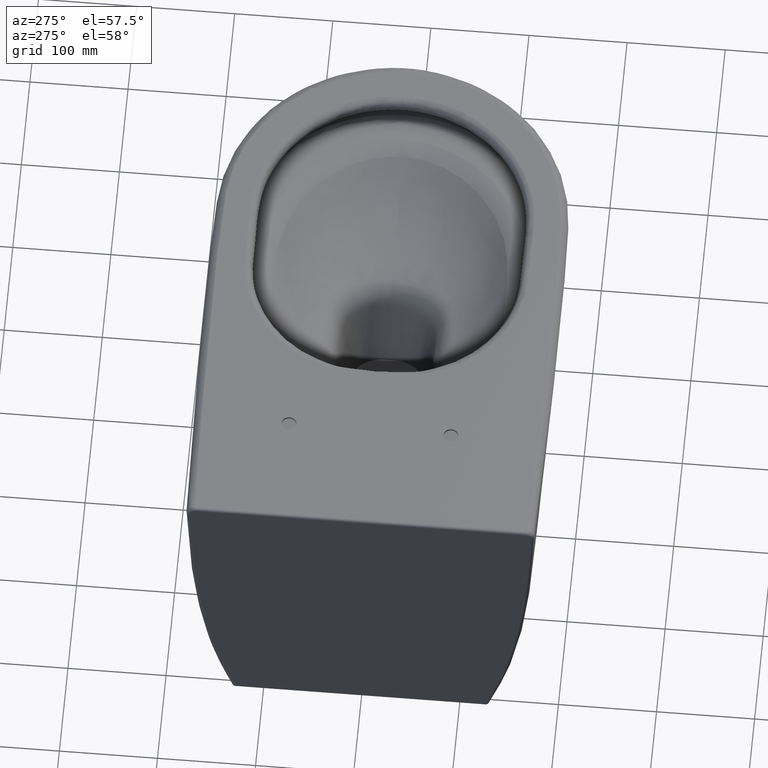
[diagram: clean part render]
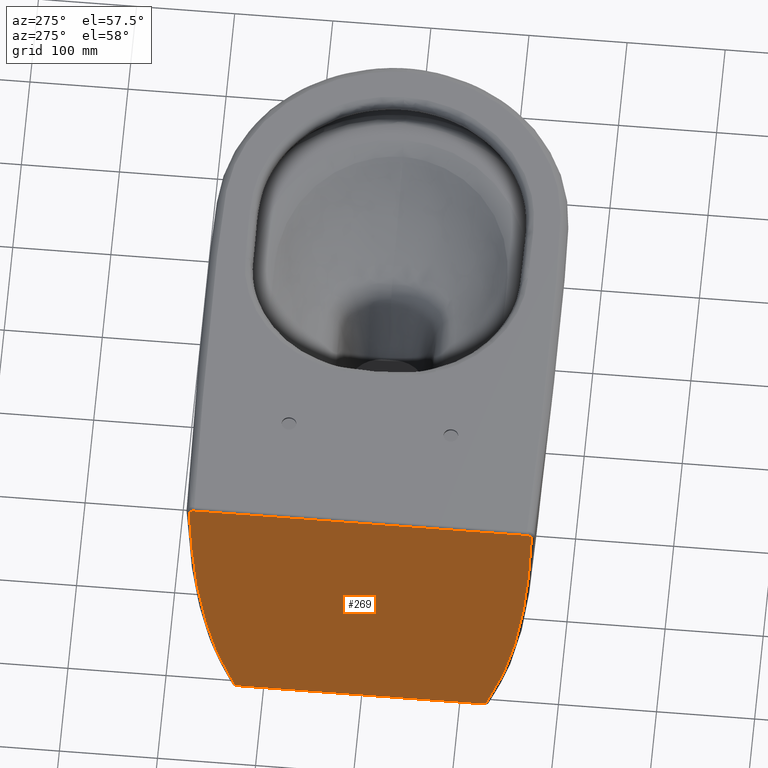
[diagram: same view with one face highlighted and labeled with its STEP entity id]
A machine part, auxiliary view. The second image highlights one B-rep face of the part: STEP entity #269.
In plain terms, the highlighted planar face has unit normal (-1, -0, -0).
Its self-contained STEP definition (entity closure, byte-faithful):
#146=FACE_OUTER_BOUND('',#491,.T.);
#269=ADVANCED_FACE('',(#146),#386,.T.);
#386=PLANE('',#2261);
#401=LINE('',#3299,#414);
#402=LINE('',#3302,#415);
#403=LINE('',#3339,#416);
#404=LINE('',#3341,#417);
#414=VECTOR('',#2338,1.);
#415=VECTOR('',#2339,1.);
#416=VECTOR('',#2340,1.);
#417=VECTOR('',#2341,1.);
#491=EDGE_LOOP('',(#640,#641,#642,#643,#644,#645,#646,#647,#648,#649));
#640=ORIENTED_EDGE('',*,*,#1623,.T.);
#641=ORIENTED_EDGE('',*,*,#1624,.F.);
#642=ORIENTED_EDGE('',*,*,#1625,.F.);
#643=ORIENTED_EDGE('',*,*,#1626,.F.);
#644=ORIENTED_EDGE('',*,*,#1627,.F.);
#645=ORIENTED_EDGE('',*,*,#1628,.F.);
#646=ORIENTED_EDGE('',*,*,#1629,.T.);
#647=ORIENTED_EDGE('',*,*,#1630,.T.);
#648=ORIENTED_EDGE('',*,*,#1631,.T.);
#649=ORIENTED_EDGE('',*,*,#1632,.T.);
#1364=VERTEX_POINT('',#3300);
#1365=VERTEX_POINT('',#3301);
#1366=VERTEX_POINT('',#3303);
#1367=VERTEX_POINT('',#3310);
#1368=VERTEX_POINT('',#3333);
#1369=VERTEX_POINT('',#3338);
#1370=VERTEX_POINT('',#3340);
#1371=VERTEX_POINT('',#3342);
#1372=VERTEX_POINT('',#3347);
#1373=VERTEX_POINT('',#3370);
#1623=EDGE_CURVE('',#1364,#1365,#401,.T.);
#1624=EDGE_CURVE('',#1366,#1365,#402,.T.);
#1625=EDGE_CURVE('',#1367,#1366,#1978,.T.);
#1626=EDGE_CURVE('',#1368,#1367,#1979,.T.);
#1627=EDGE_CURVE('',#1369,#1368,#1980,.T.);
#1628=EDGE_CURVE('',#1370,#1369,#403,.T.);
#1629=EDGE_CURVE('',#1370,#1371,#404,.T.);
#1630=EDGE_CURVE('',#1371,#1372,#1981,.T.);
#1631=EDGE_CURVE('',#1372,#1373,#1982,.T.);
#1632=EDGE_CURVE('',#1373,#1364,#1983,.T.);
#1978=B_SPLINE_CURVE_WITH_KNOTS('',3,(#3304,#3305,#3306,#3307,#3308,#3309),
 .UNSPECIFIED.,.F.,.F.,(4,2,4),(0.,0.5,1.),.UNSPECIFIED.);
#1979=B_SPLINE_CURVE_WITH_KNOTS('',3,(#3311,#3312,#3313,#3314,#3315,#3316,
#3317,#3318,#3319,#3320,#3321,#3322,#3323,#3324,#3325,#3326,#3327,#3328,
#3329,#3330,#3331,#3332),.UNSPECIFIED.,.F.,.F.,(4,2,2,2,2,2,2,2,2,2,4),
(0.,0.124999999999999,0.187499999999999,0.249999999999999,0.312499999999999,
0.374999999999999,0.499999999999999,0.624999999999999,0.75,0.875,1.),
 .UNSPECIFIED.);
#1980=B_SPLINE_CURVE_WITH_KNOTS('',3,(#3334,#3335,#3336,#3337),
 .UNSPECIFIED.,.F.,.F.,(4,4),(0.,1.),.UNSPECIFIED.);
#1981=B_SPLINE_CURVE_WITH_KNOTS('',3,(#3343,#3344,#3345,#3346),
 .UNSPECIFIED.,.F.,.F.,(4,4),(0.,1.),.UNSPECIFIED.);
#1982=B_SPLINE_CURVE_WITH_KNOTS('',3,(#3348,#3349,#3350,#3351,#3352,#3353,
#3354,#3355,#3356,#3357,#3358,#3359,#3360,#3361,#3362,#3363,#3364,#3365,
#3366,#3367,#3368,#3369),.UNSPECIFIED.,.F.,.F.,(4,2,2,2,2,2,2,2,2,2,4),
(0.,0.124999999999999,0.187499999999999,0.249999999999999,0.312499999999999,
0.374999999999999,0.499999999999999,0.624999999999999,0.75,0.875,1.),
 .UNSPECIFIED.);
#1983=B_SPLINE_CURVE_WITH_KNOTS('',3,(#3371,#3372,#3373,#3374,#3375,#3376),
 .UNSPECIFIED.,.F.,.F.,(4,2,4),(0.,0.5,1.),.UNSPECIFIED.);
#2261=AXIS2_PLACEMENT_3D('',#3377,#2342,#2343);
#2338=DIRECTION('',(-3.1037672432177E-11,1.,3.32207208491434E-17));
#2339=DIRECTION('',(-3.1037672432177E-11,-1.,3.32207208491434E-17));
#2340=DIRECTION('',(3.1037672432177E-11,1.,0.));
#2341=DIRECTION('',(3.1037672432177E-11,-1.,0.));
#2342=DIRECTION('',(-1.,-3.1037672432177E-11,-2.40548322002117E-13));
#2343=DIRECTION('',(3.1037672432177E-11,-1.,0.));
#3299=CARTESIAN_POINT('',(-22.2303730038577,6.76768129307182E-26,5.99999999999825));
#3300=CARTESIAN_POINT('',(-22.2303729985999,-169.401050152223,5.99999999999828));
#3301=CARTESIAN_POINT('',(-22.2303730038577,0.,5.99999999999826));
#3302=CARTESIAN_POINT('',(-22.2303730038577,-6.76768129307182E-26,5.99999999999825));
#3303=CARTESIAN_POINT('',(-22.2303729985999,169.401050152223,5.99999999999828));
#3304=CARTESIAN_POINT('',(-22.2303729984434,174.401734516431,0.800883933976882));
#3305=CARTESIAN_POINT('',(-22.2303729984421,174.455739100617,2.1546583785337));
#3306=CARTESIAN_POINT('',(-22.2303729984585,173.93640096052,3.50073620558595));
#3307=CARTESIAN_POINT('',(-22.2303729985165,172.083483662681,5.42750251241627));
#3308=CARTESIAN_POINT('',(-22.2303729985578,170.755865862157,5.99999999999829));
#3309=CARTESIAN_POINT('',(-22.2303729985999,169.401050152223,5.99999999999828));
#3310=CARTESIAN_POINT('',(-22.2303729984434,174.401734516431,0.800883933976881));
#3311=CARTESIAN_POINT('',(-22.2303729997945,128.416738765202,-316.018095569915));
#3312=CARTESIAN_POINT('',(-22.2303729996618,132.789298967164,-303.369188620333));
#3313=CARTESIAN_POINT('',(-22.2303729995348,136.977672833764,-290.669581469444));
#3314=CARTESIAN_POINT('',(-22.2303729993689,142.471179887113,-271.402971222238));
#3315=CARTESIAN_POINT('',(-22.230372999318,144.16366275399,-264.942592250452));
#3316=CARTESIAN_POINT('',(-22.2303729992185,147.469651725071,-252.000094704113));
#3317=CARTESIAN_POINT('',(-22.2303729991704,149.071005038764,-245.514630881801));
#3318=CARTESIAN_POINT('',(-22.2303729990821,152.016891166812,-232.47300933369));
#3319=CARTESIAN_POINT('',(-22.2303729990472,153.193966278064,-225.869332860986));
#3320=CARTESIAN_POINT('',(-22.2303729989776,155.5381088644,-212.668789339119));
#3321=CARTESIAN_POINT('',(-22.230372998944,156.671441127239,-206.062916654063));
#3322=CARTESIAN_POINT('',(-22.2303729988467,159.959701566698,-186.229143656261));
#3323=CARTESIAN_POINT('',(-22.230372998786,162.018486830645,-172.987342914045));
#3324=CARTESIAN_POINT('',(-22.2303729986902,165.311982599083,-146.384595953864));
#3325=CARTESIAN_POINT('',(-22.2303729986545,166.562446309578,-133.02205172421));
#3326=CARTESIAN_POINT('',(-22.2303729985865,168.960118727204,-106.306709205617));
#3327=CARTESIAN_POINT('',(-22.2303729985569,170.019337045702,-92.9407524479425));
#3328=CARTESIAN_POINT('',(-22.230372998511,171.706511623547,-66.1832460727997));
#3329=CARTESIAN_POINT('',(-22.2303729984964,172.282654138472,-52.7886216151773));
#3330=CARTESIAN_POINT('',(-22.2303729984702,173.332271248082,-25.9932799643621));
#3331=CARTESIAN_POINT('',(-22.2303729984568,173.867299261917,-12.5962156035776));
#3332=CARTESIAN_POINT('',(-22.2303729984434,174.401734516431,0.800883933976777));
#3333=CARTESIAN_POINT('',(-22.2303729997945,128.416738765202,-316.018095569915));
#3334=CARTESIAN_POINT('',(-22.2303729998153,127.729296853295,-317.999999999503));
#3335=CARTESIAN_POINT('',(-22.2303729998084,127.959133000586,-317.339604523809));
#3336=CARTESIAN_POINT('',(-22.2303729998014,128.188283224542,-316.678969918684));
#3337=CARTESIAN_POINT('',(-22.2303729997945,128.416738765202,-316.018095569915));
#3338=CARTESIAN_POINT('',(-22.2303729998153,127.729296853295,-317.999999999503));
#3339=CARTESIAN_POINT('',(-22.230373005063,-41.3431544791565,-317.999999999503));
#3340=CARTESIAN_POINT('',(-22.2303730037798,0.,-317.999999999503));
#3341=CARTESIAN_POINT('',(-22.230373005063,41.3431544791565,-317.999999999503));
#3342=CARTESIAN_POINT('',(-22.2303729998153,-127.729296853295,-317.999999999503));
#3343=CARTESIAN_POINT('',(-22.2303729998153,-127.729296853295,-317.999999999503));
#3344=CARTESIAN_POINT('',(-22.2303729998084,-127.959133000586,-317.339604523809));
#3345=CARTESIAN_POINT('',(-22.2303729998014,-128.188283224542,-316.678969918684));
#3346=CARTESIAN_POINT('',(-22.2303729997945,-128.416738765202,-316.018095569915));
#3347=CARTESIAN_POINT('',(-22.2303729997945,-128.416738765202,-316.018095569915));
#3348=CARTESIAN_POINT('',(-22.2303729997945,-128.416738765202,-316.018095569915));
#3349=CARTESIAN_POINT('',(-22.2303729996618,-132.789298967164,-303.369188620333));
#3350=CARTESIAN_POINT('',(-22.2303729995348,-136.977672833764,-290.669581469444));
#3351=CARTESIAN_POINT('',(-22.2303729993689,-142.471179887113,-271.402971222238));
#3352=CARTESIAN_POINT('',(-22.230372999318,-144.16366275399,-264.942592250452));
#3353=CARTESIAN_POINT('',(-22.2303729992185,-147.469651725071,-252.000094704113));
#3354=CARTESIAN_POINT('',(-22.2303729991704,-149.071005038764,-245.514630881801));
#3355=CARTESIAN_POINT('',(-22.2303729990821,-152.016891166812,-232.47300933369));
#3356=CARTESIAN_POINT('',(-22.2303729990472,-153.193966278064,-225.869332860986));
#3357=CARTESIAN_POINT('',(-22.2303729989776,-155.5381088644,-212.668789339119));
#3358=CARTESIAN_POINT('',(-22.230372998944,-156.671441127239,-206.062916654063));
#3359=CARTESIAN_POINT('',(-22.2303729988467,-159.959701566698,-186.229143656261));
#3360=CARTESIAN_POINT('',(-22.230372998786,-162.018486830645,-172.987342914045));
#3361=CARTESIAN_POINT('',(-22.2303729986902,-165.311982599083,-146.384595953864));
#3362=CARTESIAN_POINT('',(-22.2303729986545,-166.562446309578,-133.02205172421));
#3363=CARTESIAN_POINT('',(-22.2303729985865,-168.960118727204,-106.306709205617));
#3364=CARTESIAN_POINT('',(-22.2303729985569,-170.019337045702,-92.9407524479425));
#3365=CARTESIAN_POINT('',(-22.230372998511,-171.706511623547,-66.1832460727997));
#3366=CARTESIAN_POINT('',(-22.2303729984964,-172.282654138472,-52.7886216151773));
#3367=CARTESIAN_POINT('',(-22.2303729984702,-173.332271248082,-25.9932799643621));
#3368=CARTESIAN_POINT('',(-22.2303729984568,-173.867299261917,-12.5962156035776));
#3369=CARTESIAN_POINT('',(-22.2303729984434,-174.401734516431,0.800883933976777));
#3370=CARTESIAN_POINT('',(-22.2303729984434,-174.401734516431,0.800883933976881));
#3371=CARTESIAN_POINT('',(-22.2303729984434,-174.401734516431,0.800883933976882));
#3372=CARTESIAN_POINT('',(-22.2303729984421,-174.455739100617,2.1546583785337));
#3373=CARTESIAN_POINT('',(-22.2303729984585,-173.93640096052,3.50073620558595));
#3374=CARTESIAN_POINT('',(-22.2303729985165,-172.083483662681,5.42750251241627));
#3375=CARTESIAN_POINT('',(-22.2303729985578,-170.755865862157,5.99999999999829));
#3376=CARTESIAN_POINT('',(-22.2303729985999,-169.401050152223,5.99999999999828));
#3377=CARTESIAN_POINT('',(-22.2303730050833,41.3431544791565,-233.396670946746));